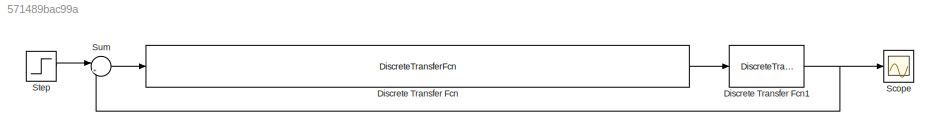
MODEL slx_571489bac99a
KIND model
CONFIG AbsTol = auto
CONFIG EnableMultiTasking = off
CONFIG FixedStep = auto
CONFIG MaxStep = auto
CONFIG MinStep = auto
CONFIG RelTol = 1e-3
CONFIG SampleTimeConstraint = Unconstrained
CONFIG Solver = VariableStepAuto
CONFIG SolverName = VariableStepAuto
CONFIG StartTime = 0.0
CONFIG StopTime = 50.0
BLOCK [DiscreteTransferFcn] Discrete Transfer Fcn
  Denominator = [0.0000108 0.00002182 -0.00001085 -0.00004415 -0.00001121 0.00002233 0.00001126]
  InputPortMap = u0
  Numerator = [0.9808 -1.176 -1.933 3.765 -1.931 0.2942]
  Ports = [1, 1]
BLOCK [DiscreteTransferFcn] Discrete Transfer Fcn1
  Denominator = [1 -2.282 1.564 -0.2821]
  InputPortMap = u0
  Numerator = [0.0000108 0.00003241 0.00003241 0.0000108]
  Ports = [1, 1]
BLOCK [Scope] Scope
  Floating = off
  NumInputPorts = 1
  Ports = [1]
  ScopeSpecificationString = Simulink.scopes.TimeScopeBlockCfg('CurrentConfiguration', extmgr.ConfigurationSet(extmgr.Configuration('Core','General UI',true),extmgr.Configuration('Core','Source UI',true),extmgr.Configuration('Sources','WiredSimulink',true),extmgr.Configuration('Visuals','Time Domain',true,'SerializedDisplays',{struct('MinYLimReal','-0.25534','MaxYLimReal','2.29809','YLabelReal','','MinYLimMag','0.00000','MaxY...<+1371ch>
BLOCK [Step] Step
  SampleTime = 0
BLOCK [Sum] Sum
  Inputs = |+-
  Ports = [2, 1]
NET Discrete Transfer Fcn1:1 -> Scope:1, Sum:2
LINE Discrete Transfer Fcn:1 -> Discrete Transfer Fcn1:1
LINE Step:1 -> Sum:1
LINE Sum:1 -> Discrete Transfer Fcn:1
note: NET lines group one-source signal fan-out (src -> all destinations, sorted); 1:1 wires keep LINE
